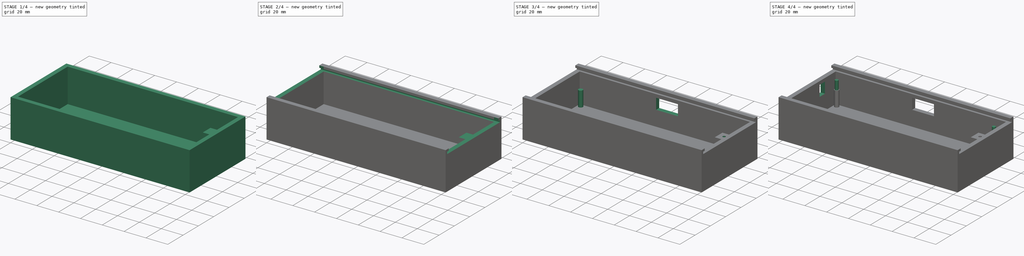
[diagram: build sequence overview — one tinted view per stage of 4, left to right]
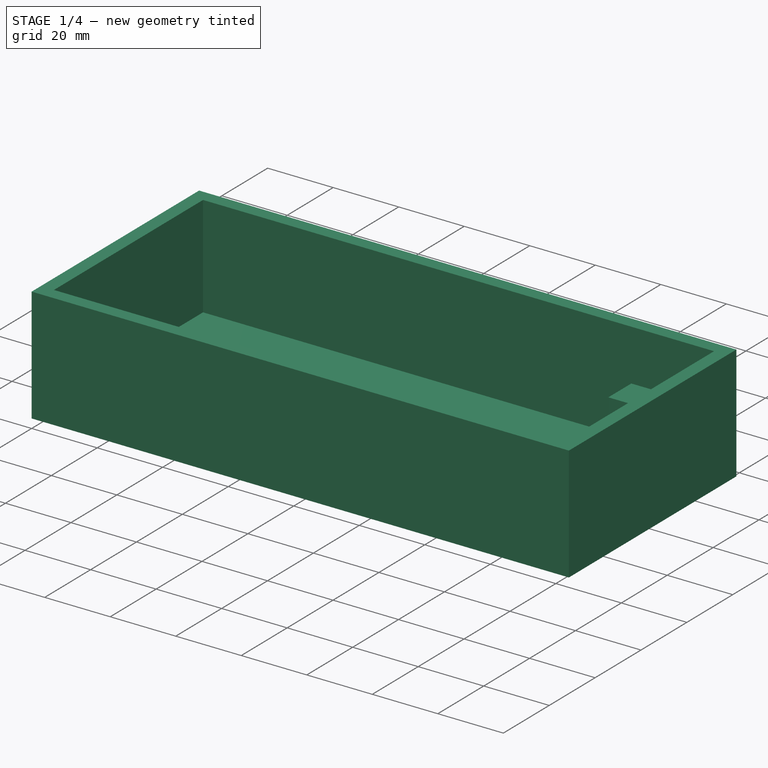
[diagram: stage 1 of 4 — iso view after this stage's code; geometry added in this stage tinted green]
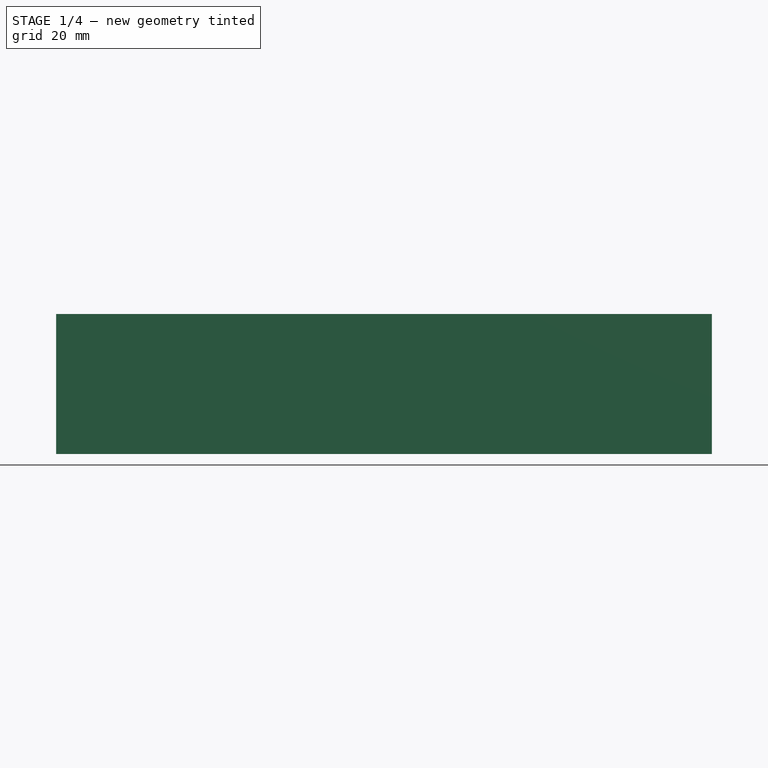
[diagram: stage 1 of 4 — front view after this stage's code; geometry added in this stage tinted green]
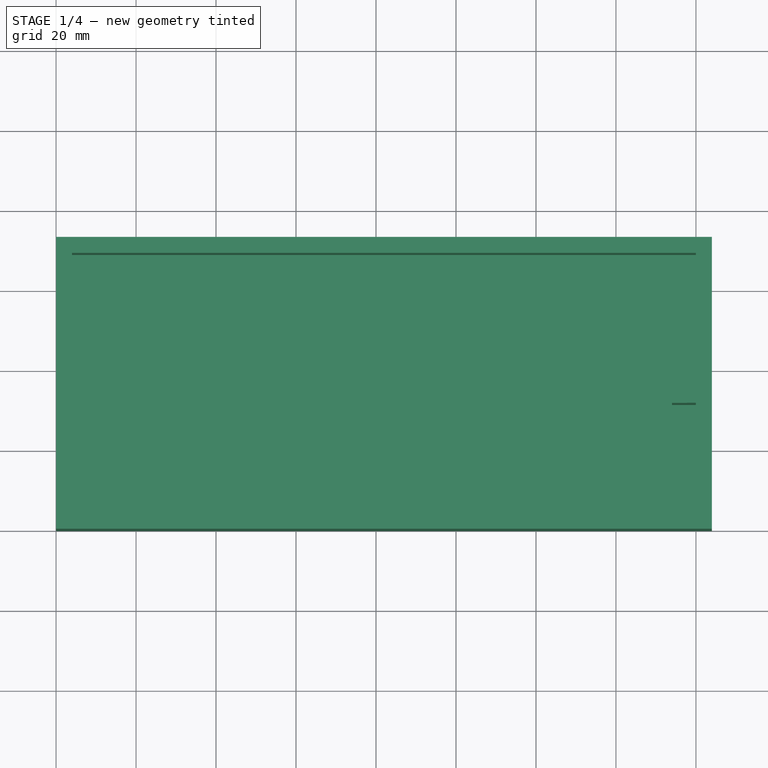
[diagram: stage 1 of 4 — top view after this stage's code; geometry added in this stage tinted green]
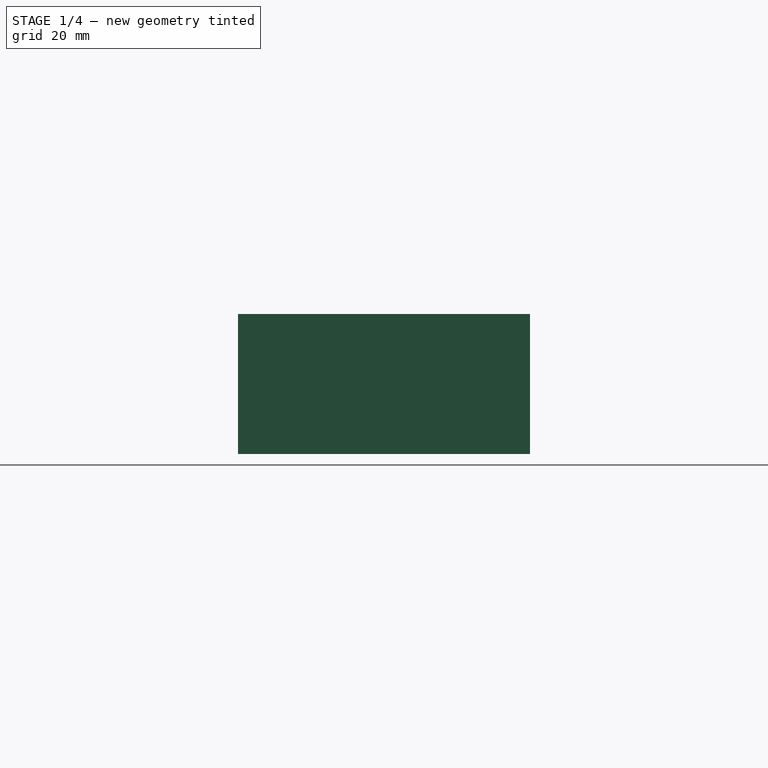
[diagram: stage 1 of 4 — right view after this stage's code; geometry added in this stage tinted green]
FCSTD DOCUMENT  (FreeCAD 0.20R29603 (Git))
Label: 3D_Case
License: All rights reserved
LicenseURL: http://en.wikipedia.org/wiki/All_rights_reserved
objects: Sketcher::SketchObject×9, PartDesign::Pocket×6, PartDesign::Pad×3, PartDesign::Body×1
note: 28 computed .brp shape members not serialized (recipe doc carries the construction recipe); baked Part::Feature solids carry a one-line shape summary decoded from their .brp

FEATURE [Sketcher::SketchObject] Sketch
  FullyConstrained = true
  MapMode = 5
  Support = -> [XY_Plane]
  sketch-geometry (4):
    g0: LineSegment StartX=0 StartY=0 StartZ=0 EndX=164 EndY=0 EndZ=0
    g1: LineSegment StartX=164 StartY=0 StartZ=0 EndX=164 EndY=73 EndZ=0
    g2: LineSegment StartX=164 StartY=73 StartZ=0 EndX=0 EndY=73 EndZ=0
    g3: LineSegment StartX=0 StartY=73 StartZ=0 EndX=0 EndY=0 EndZ=0
  constraints (12):
    c: Coincident(g0,g1)
    c: Coincident(g1,g2)
    c: Coincident(g2,g3)
    c: Coincident(g3,g0)
    c: Horizontal(g0)
    c: Horizontal(g2)
    c: Vertical(g1)
    c: Vertical(g3)
    c: DistanceX(g0) = 0
    c: DistanceY(g0) = 0
    c: DistanceX(g2,g2) = 164
    c: DistanceY(g3,g3) = 73
FEATURE [PartDesign::Pad] Pad
  Direction = (0,0,1)
  Length = 35
  Length2 = 10
  Profile = -> Sketch
  ReferenceAxis = -> Sketch [N_Axis]
  Type = 0
FEATURE [Sketcher::SketchObject] Sketch001
  FullyConstrained = false
  MapMode = 5
  Placement = pos=(0,0,35) rot=(0,0,1;0rad)
  Support = -> [Pad]
  sketch-geometry (8):
    g0: LineSegment StartX=4 StartY=69 StartZ=0 EndX=160 EndY=69 EndZ=0
    g1: LineSegment StartX=160 StartY=69 StartZ=0 EndX=160 EndY=41.5 EndZ=0
    g2: LineSegment StartX=160 StartY=41.5 StartZ=0 EndX=154 EndY=41.4712 EndZ=0
    g3: LineSegment StartX=154 StartY=41.4712 StartZ=0 EndX=154 EndY=31.4712 EndZ=0
    g4: LineSegment StartX=154 StartY=31.4712 StartZ=0 EndX=160 EndY=31.5 EndZ=0
    g5: LineSegment StartX=160 StartY=31.5 StartZ=0 EndX=160 EndY=4 EndZ=0
    g6: LineSegment StartX=160 StartY=4 StartZ=0 EndX=4 EndY=4 EndZ=0
    g7: LineSegment StartX=4 StartY=4 StartZ=0 EndX=4 EndY=69 EndZ=0
  constraints (23):
    c: Horizontal(g0)
    c: Coincident(g0,g1)
    c: Vertical(g1)
    c: Coincident(g1,g2)
    c: Coincident(g2,g3)
    c: Coincident(g3,g4)
    c: Coincident(g4,g5)
    c: Vertical(g5)
    c: Coincident(g5,g6)
    c: Horizontal(g6)
    c: Coincident(g6,g7)
    c: Coincident(g7,g0)
    c: Vertical(g7)
    c: DistanceX(g6) = 4
    c: DistanceY(g6) = 4
    c: DistanceX(g6,g6) = 156
    c: DistanceX(g0,g0) = 156
    c: DistanceX(g2,g2) = 6
    c: DistanceX(g4,g4) = 6
    c: DistanceY(g1,g1) = 27.5
    c: DistanceY(g5,g5) = 27.5
    c: DistanceY(g3,g3) = 10
    c: DistanceY(g7,g7) = 65
FEATURE [PartDesign::Pocket] Pocket
  BaseFeature = -> Pad
  Direction = (0,0,-1)
  Length = 31
  Length2 = 5
  Profile = -> Sketch001
  ReferenceAxis = -> Sketch001 [N_Axis]
  Type = 0
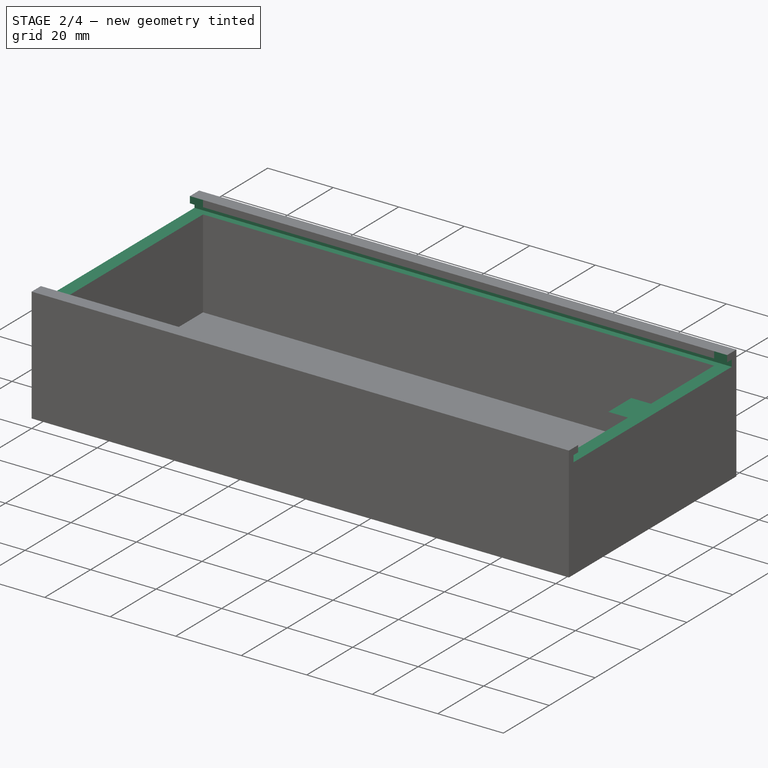
[diagram: stage 2 of 4 — iso view after this stage's code; geometry added in this stage tinted green]
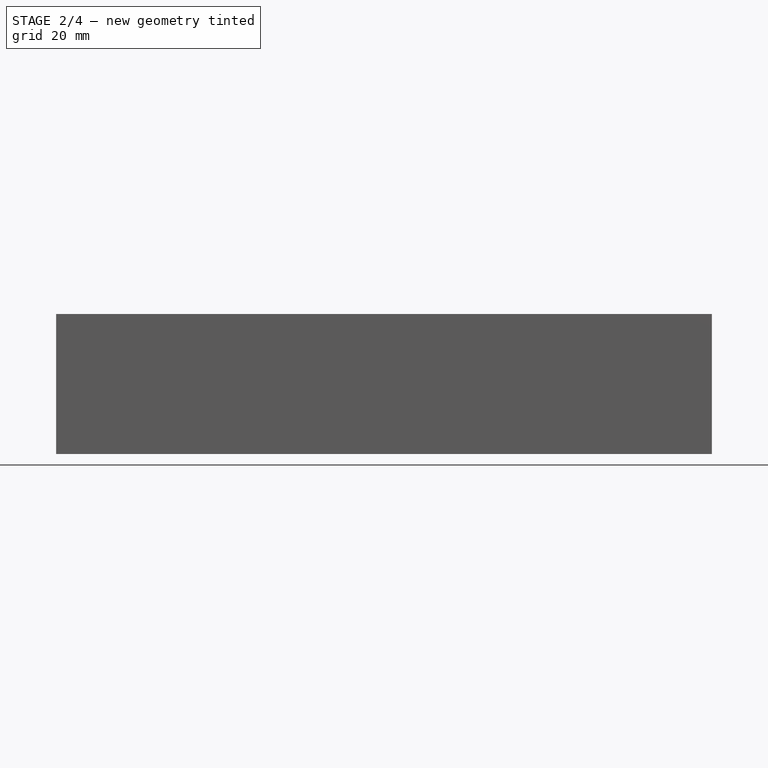
[diagram: stage 2 of 4 — front view after this stage's code; geometry added in this stage tinted green]
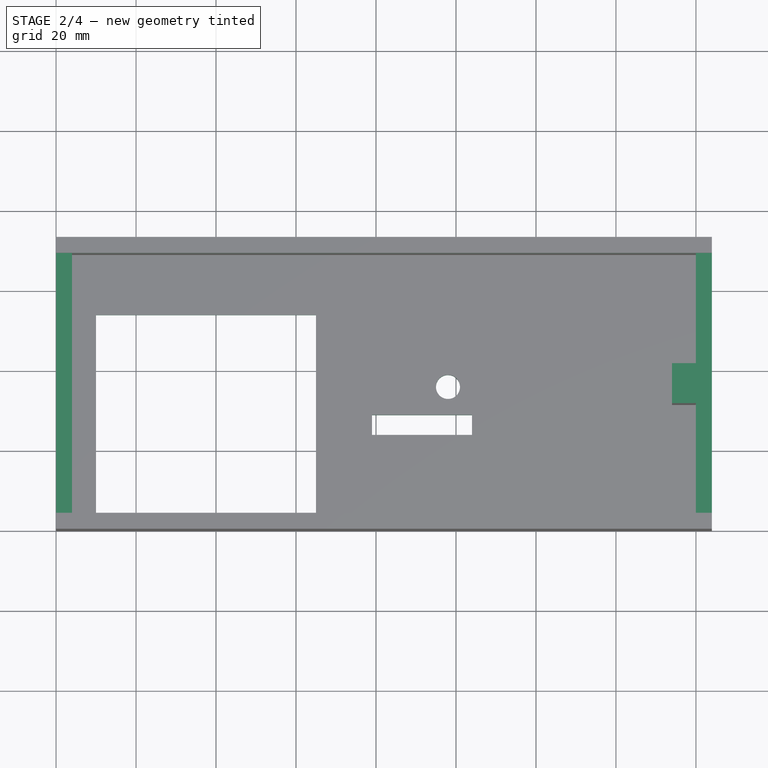
[diagram: stage 2 of 4 — top view after this stage's code; geometry added in this stage tinted green]
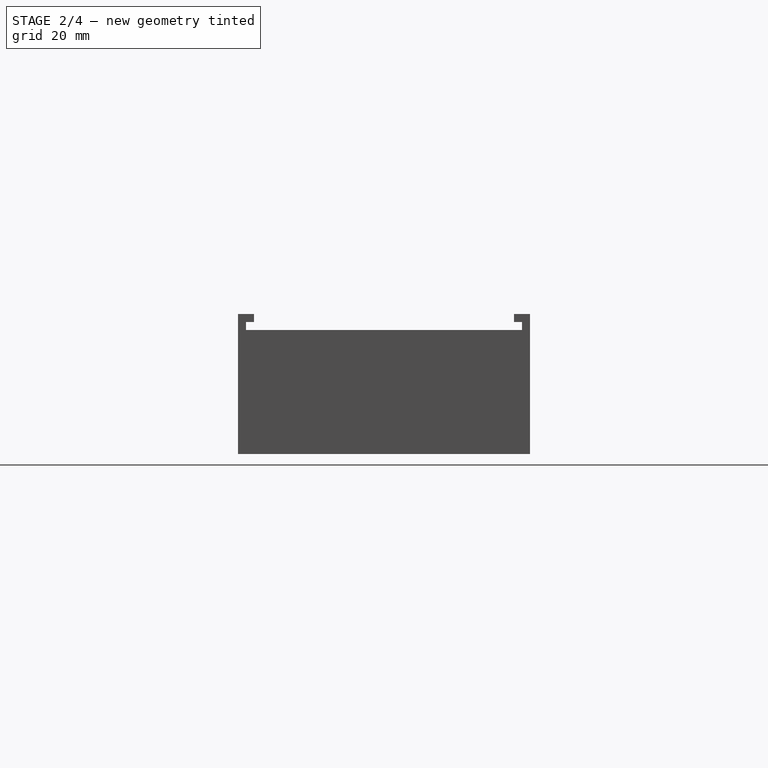
[diagram: stage 2 of 4 — right view after this stage's code; geometry added in this stage tinted green]
FEATURE [Sketcher::SketchObject] Sketch002
  FullyConstrained = true
  MapMode = 5
  Placement = pos=(0,0,0) rot=(0.57735,-0.57735,-0.57735;2.0944rad)
  Support = -> [Pocket]
  sketch-geometry (8):
    g0: LineSegment StartX=-69 StartY=35 StartZ=0 EndX=-69 EndY=33 EndZ=0
    g1: LineSegment StartX=-69 StartY=33 StartZ=0 EndX=-71 EndY=33 EndZ=0
    g2: LineSegment StartX=-71 StartY=33 StartZ=0 EndX=-71 EndY=31 EndZ=0
    g3: LineSegment StartX=-71 StartY=31 StartZ=0 EndX=-2 EndY=31 EndZ=0
    g4: LineSegment StartX=-2 StartY=31 StartZ=0 EndX=-2 EndY=33 EndZ=0
    g5: LineSegment StartX=-2 StartY=33 StartZ=0 EndX=-4 EndY=33 EndZ=0
    g6: LineSegment StartX=-4 StartY=33 StartZ=0 EndX=-4 EndY=35 EndZ=0
    g7: LineSegment StartX=-4 StartY=35 StartZ=0 EndX=-69 EndY=35 EndZ=0
  constraints (24):
    c: Vertical(g0)
    c: Coincident(g0,g1)
    c: Horizontal(g1)
    c: Coincident(g1,g2)
    c: Vertical(g2)
    c: Coincident(g2,g3)
    c: Horizontal(g3)
    c: Coincident(g3,g4)
    c: Vertical(g4)
    c: Coincident(g4,g5)
    c: Horizontal(g5)
    c: Coincident(g5,g6)
    c: Vertical(g6)
    c: Coincident(g6,g7)
    c: Coincident(g7,g0)
    c: Horizontal(g7)
    c: DistanceY(g0,g0) = 2
    c: DistanceY(g2,g2) = 2
    c: DistanceY(g6,g6) = 2
    c: DistanceX(g5,g5) = 2
    c: DistanceX(g1,g1) = 2
    c: DistanceX(g7,g7) = 65
    c: DistanceX(g3) = -2
    c: DistanceY(g3) = 31
FEATURE [PartDesign::Pocket] Pocket001
  BaseFeature = -> Pocket
  Direction = (1,0,0)
  Length = 200
  Length2 = 5
  Profile = -> Sketch002
  ReferenceAxis = -> Sketch002 [N_Axis]
  Type = 0
FEATURE [Sketcher::SketchObject] Sketch003
  FullyConstrained = true
  MapMode = 5
  Placement = pos=(0,0,4) rot=(0,0,1;0rad)
  Support = -> [Pocket001]
  sketch-geometry (9):
    g0: LineSegment StartX=10 StartY=4 StartZ=0 EndX=65 EndY=4 EndZ=0
    g1: LineSegment StartX=65 StartY=4 StartZ=0 EndX=65 EndY=54 EndZ=0
    g2: LineSegment StartX=65 StartY=54 StartZ=0 EndX=10 EndY=54 EndZ=0
    g3: LineSegment StartX=10 StartY=54 StartZ=0 EndX=10 EndY=4 EndZ=0
    g4: Circle CenterX=98 CenterY=36 CenterZ=0 NormalX=0 NormalY=0 NormalZ=1 AngleXU=0 Radius=3
    g5: LineSegment StartX=79 StartY=29 StartZ=0 EndX=104 EndY=29 EndZ=0
    g6: LineSegment StartX=104 StartY=29 StartZ=0 EndX=104 EndY=24 EndZ=0
    g7: LineSegment StartX=104 StartY=24 StartZ=0 EndX=79 EndY=24 EndZ=0
    g8: LineSegment StartX=79 StartY=24 StartZ=0 EndX=79 EndY=29 EndZ=0
  constraints (27):
    c: Coincident(g0,g1)
    c: Coincident(g1,g2)
    c: Coincident(g2,g3)
    c: Coincident(g3,g0)
    c: Horizontal(g0)
    c: Horizontal(g2)
    c: Vertical(g1)
    c: Vertical(g3)
    c: Coincident(g5,g6)
    c: Coincident(g6,g7)
    c: Coincident(g7,g8)
    c: Coincident(g8,g5)
    c: Horizontal(g5)
    c: Horizontal(g7)
    c: Vertical(g6)
    c: Vertical(g8)
    c: DistanceY(g6,g6) = 5
    c: DistanceX(g7,g7) = 25
    c: Diameter(g4) = 6
    c: DistanceX(g2,g2) = 55
    c: DistanceY(g1,g1) = 50
    c: DistanceX(g0) = 10
    c: DistanceY(g0) = 4
    c: DistanceX(g4) = 98
    c: DistanceY(g4) = 36
    c: DistanceX(g7) = 79
    c: DistanceY(g7) = 24
FEATURE [PartDesign::Pocket] Pocket002
  BaseFeature = -> Pocket001
  Direction = (0,0,-1)
  Length = 5
  Length2 = 5
  Profile = -> Sketch003
  ReferenceAxis = -> Sketch003 [N_Axis]
  Type = 0
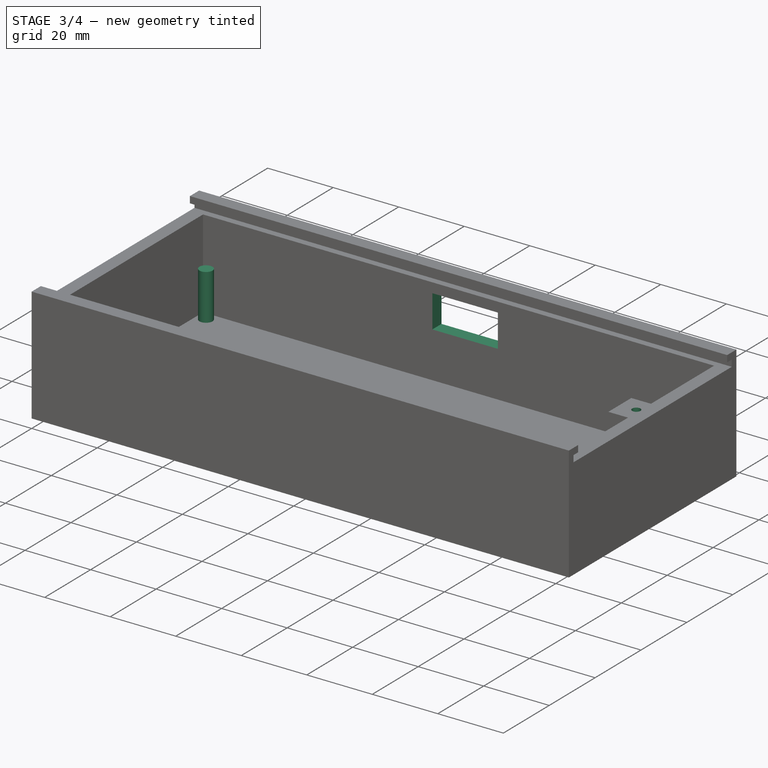
[diagram: stage 3 of 4 — iso view after this stage's code; geometry added in this stage tinted green]
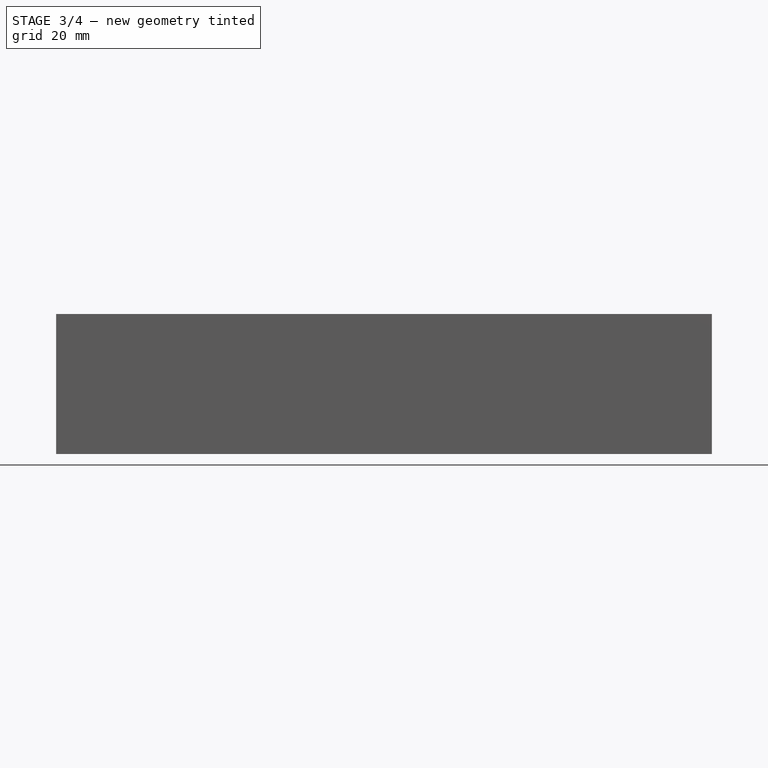
[diagram: stage 3 of 4 — front view after this stage's code; geometry added in this stage tinted green]
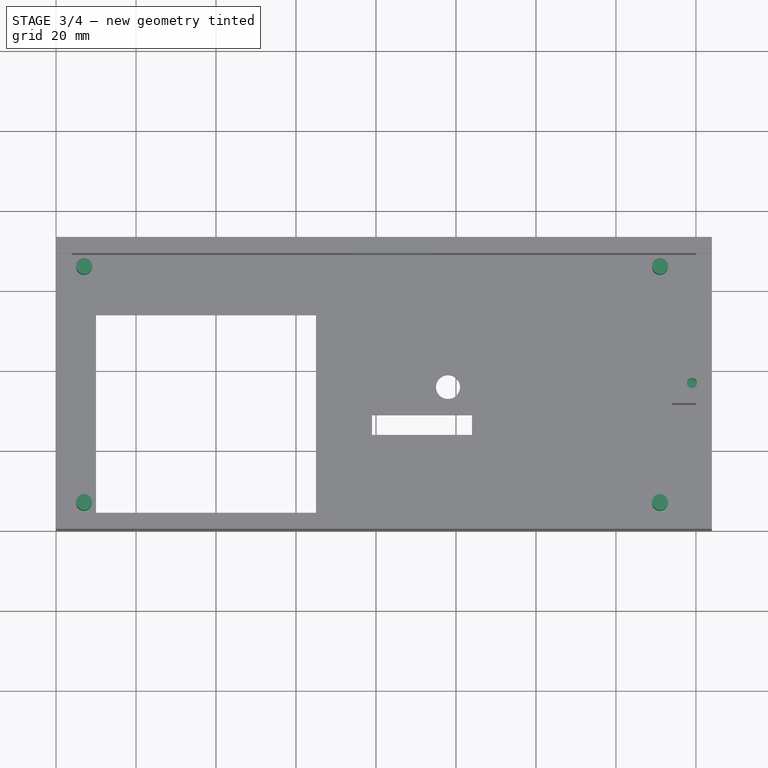
[diagram: stage 3 of 4 — top view after this stage's code; geometry added in this stage tinted green]
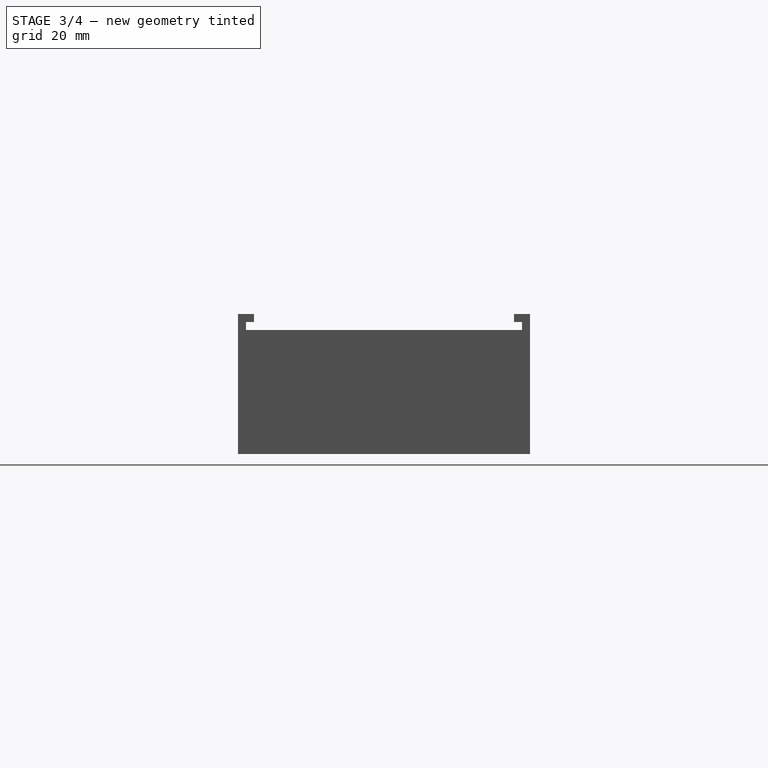
[diagram: stage 3 of 4 — right view after this stage's code; geometry added in this stage tinted green]
FEATURE [Sketcher::SketchObject] Sketch004
  FullyConstrained = true
  MapMode = 5
  Placement = pos=(0,0,4) rot=(0,0,1;0rad)
  Support = -> [Pocket002]
  sketch-geometry (4):
    g0: Circle CenterX=7 CenterY=66 CenterZ=0 NormalX=0 NormalY=0 NormalZ=1 AngleXU=0 Radius=2
    g1: Circle CenterX=7 CenterY=7 CenterZ=0 NormalX=0 NormalY=0 NormalZ=1 AngleXU=0 Radius=2
    g2: Circle CenterX=151 CenterY=66 CenterZ=0 NormalX=0 NormalY=0 NormalZ=1 AngleXU=0 Radius=2
    g3: Circle CenterX=151 CenterY=7 CenterZ=0 NormalX=0 NormalY=0 NormalZ=1 AngleXU=0 Radius=2
  constraints (12):
    c: Diameter(g0) = 4
    c: Diameter(g1) = 4
    c: Diameter(g3) = 4
    c: Diameter(g2) = 4
    c: DistanceX(g0) = 7
    c: DistanceY(g0) = 66
    c: DistanceX(g1) = 7
    c: DistanceY(g1) = 7
    c: DistanceX(g3) = 151
    c: DistanceY(g3) = 7
    c: DistanceX(g2) = 151
    c: DistanceY(g2) = 66
FEATURE [PartDesign::Pad] Pad001
  BaseFeature = -> Pocket002
  Direction = (0,0,1)
  Length = 14
  Length2 = 10
  Profile = -> Sketch004
  ReferenceAxis = -> Sketch004 [N_Axis]
  Type = 0
FEATURE [Sketcher::SketchObject] Sketch005
  FullyConstrained = true
  MapMode = 5
  Placement = pos=(0,0,31) rot=(0,0,1;0rad)
  Support = -> [Pad001]
  sketch-geometry (1):
    g0: Circle CenterX=159 CenterY=36.5 CenterZ=0 NormalX=0 NormalY=0 NormalZ=1 AngleXU=0 Radius=1.25
  constraints (3):
    c: Diameter(g0) = 2.5
    c: DistanceX(g0) = 159
    c: DistanceY(g0) = 36.5
FEATURE [PartDesign::Pocket] Pocket003
  BaseFeature = -> Pad001
  Direction = (0,0,-1)
  Length = 10
  Length2 = 5
  Profile = -> Sketch005
  ReferenceAxis = -> Sketch005 [N_Axis]
  Type = 0
FEATURE [Sketcher::SketchObject] Sketch006
  FullyConstrained = true
  MapMode = 5
  Placement = pos=(0,69,0) rot=(1,0,0;1.5708rad)
  Support = -> [Pocket003]
  sketch-geometry (4):
    g0: LineSegment StartX=74 StartY=28 StartZ=0 EndX=94 EndY=28 EndZ=0
    g1: LineSegment StartX=94 StartY=28 StartZ=0 EndX=94 EndY=18 EndZ=0
    g2: LineSegment StartX=94 StartY=18 StartZ=0 EndX=74 EndY=18 EndZ=0
    g3: LineSegment StartX=74 StartY=18 StartZ=0 EndX=74 EndY=28 EndZ=0
  constraints (12):
    c: Coincident(g0,g1)
    c: Coincident(g1,g2)
    c: Coincident(g2,g3)
    c: Coincident(g3,g0)
    c: Horizontal(g0)
    c: Horizontal(g2)
    c: Vertical(g1)
    c: Vertical(g3)
    c: DistanceX(g0,g0) = 20
    c: DistanceY(g1,g1) = 10
    c: DistanceX(g2) = 74
    c: DistanceY(g2) = 18
FEATURE [PartDesign::Pocket] Pocket004
  BaseFeature = -> Pocket003
  Direction = (0,1,-2e-16)
  Length = 5
  Length2 = 5
  Profile = -> Sketch006
  ReferenceAxis = -> Sketch006 [N_Axis]
  Type = 0
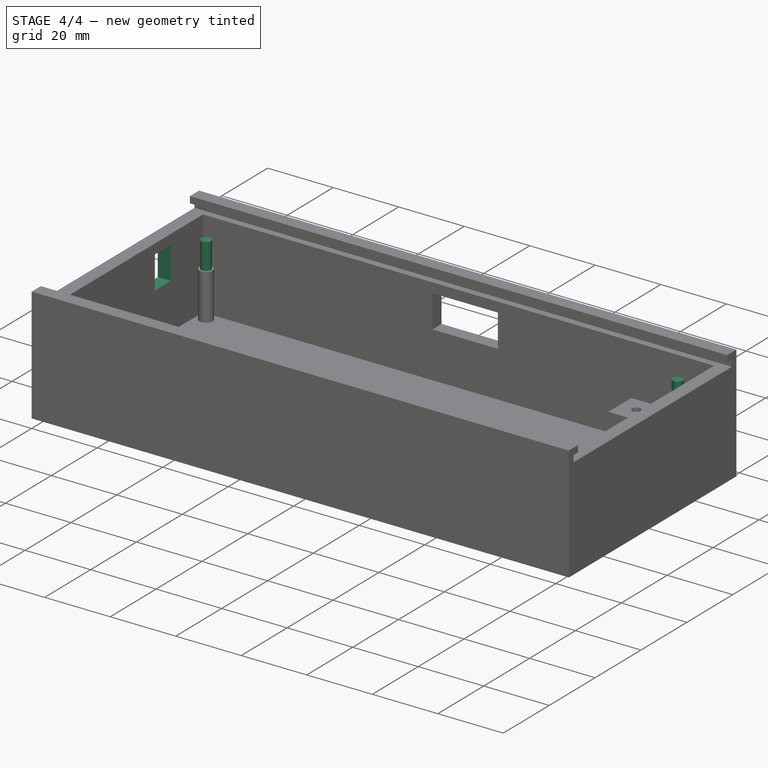
[diagram: stage 4 of 4 — iso view after this stage's code; geometry added in this stage tinted green]
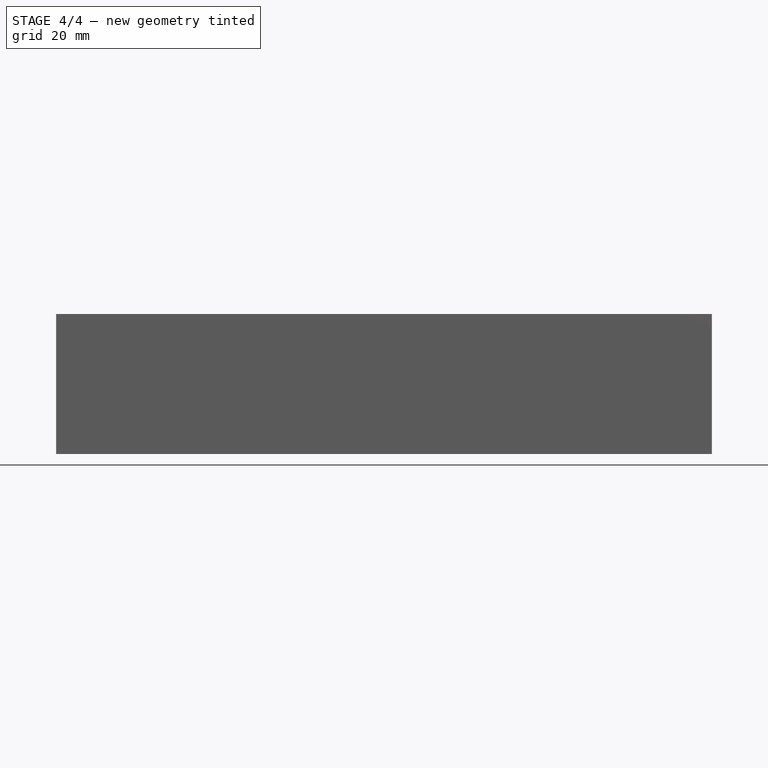
[diagram: stage 4 of 4 — front view after this stage's code; geometry added in this stage tinted green]
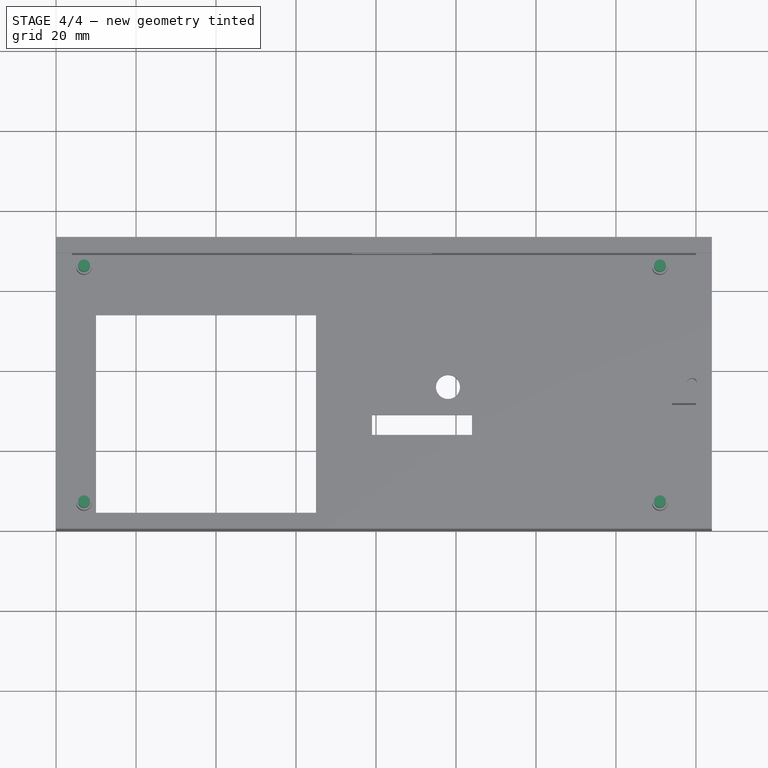
[diagram: stage 4 of 4 — top view after this stage's code; geometry added in this stage tinted green]
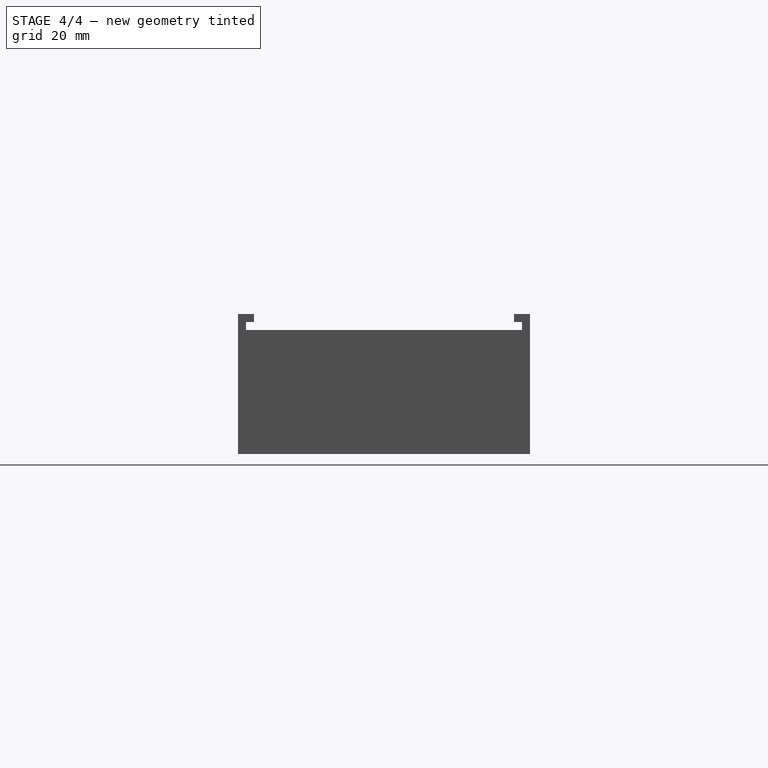
[diagram: stage 4 of 4 — right view after this stage's code; geometry added in this stage tinted green]
FEATURE [Sketcher::SketchObject] Sketch007
  FullyConstrained = true
  MapMode = 5
  Placement = pos=(0,0,0) rot=(0.57735,-0.57735,-0.57735;2.0944rad)
  Support = -> [Pocket004]
  sketch-geometry (4):
    g0: LineSegment StartX=-55 StartY=28 StartZ=0 EndX=-48 EndY=28 EndZ=0
    g1: LineSegment StartX=-48 StartY=28 StartZ=0 EndX=-48 EndY=18 EndZ=0
    g2: LineSegment StartX=-48 StartY=18 StartZ=0 EndX=-55 EndY=18 EndZ=0
    g3: LineSegment StartX=-55 StartY=18 StartZ=0 EndX=-55 EndY=28 EndZ=0
  constraints (12):
    c: Coincident(g0,g1)
    c: Coincident(g1,g2)
    c: Coincident(g2,g3)
    c: Coincident(g3,g0)
    c: Horizontal(g0)
    c: Horizontal(g2)
    c: Vertical(g1)
    c: Vertical(g3)
    c: DistanceX(g0,g0) = 7
    c: DistanceY(g1,g1) = 10
    c: DistanceX(g2) = -55
    c: DistanceY(g2) = 18
FEATURE [PartDesign::Pocket] Pocket005
  BaseFeature = -> Pocket004
  Direction = (1,0,0)
  Length = 5
  Length2 = 5
  Profile = -> Sketch007
  ReferenceAxis = -> Sketch007 [N_Axis]
  Type = 0
FEATURE [Sketcher::SketchObject] Sketch008
  FullyConstrained = true
  MapMode = 5
  Placement = pos=(0,0,18) rot=(0,0,1;0rad)
  Support = -> [Pocket005]
  sketch-geometry (4):
    g0: Circle CenterX=7 CenterY=66 CenterZ=0 NormalX=0 NormalY=0 NormalZ=1 AngleXU=0 Radius=1.5
    g1: Circle CenterX=7 CenterY=7 CenterZ=0 NormalX=0 NormalY=0 NormalZ=1 AngleXU=0 Radius=1.5
    g2: Circle CenterX=151 CenterY=7 CenterZ=0 NormalX=0 NormalY=0 NormalZ=1 AngleXU=0 Radius=1.5
    g3: Circle CenterX=151 CenterY=66 CenterZ=0 NormalX=0 NormalY=0 NormalZ=1 AngleXU=0 Radius=1.5
  constraints (12):
    c: Diameter(g0) = 3
    c: DistanceX(g0) = 7
    c: DistanceY(g0) = 66
    c: Diameter(g1) = 3
    c: DistanceX(g1) = 7
    c: DistanceY(g1) = 7
    c: Diameter(g3) = 3
    c: Diameter(g2) = 3
    c: DistanceX(g2) = 151
    c: DistanceY(g2) = 7
    c: DistanceX(g3) = 151
    c: DistanceY(g3) = 66
FEATURE [PartDesign::Pad] Pad002
  BaseFeature = -> Pocket005
  Direction = (0,0,1)
  Length = 8
  Length2 = 10
  Profile = -> Sketch008
  ReferenceAxis = -> Sketch008 [N_Axis]
  Type = 0
FEATURE [PartDesign::Body] Body
  Group = -> [Sketch,Pad,Sketch001,Pocket,Sketch002,Pocket001,Sketch003,Pocket002,Sketch004,Pad001,Sketch005,Pocket003,Sketch006,Pocket004,Sketch007,Pocket005,Sketch008,Pad002]
  Origin = -> Origin
  Tip = -> Pad002
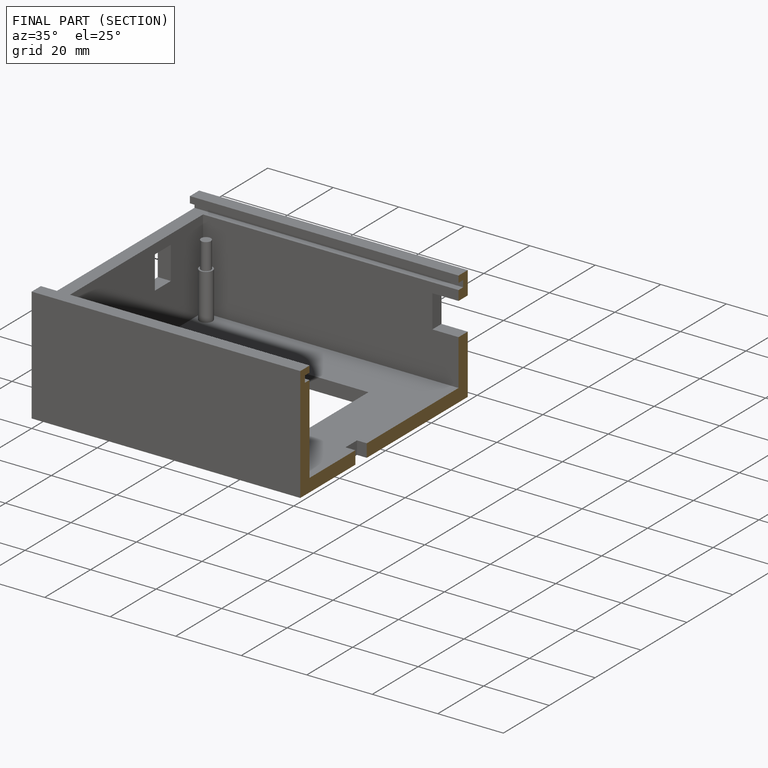
[diagram: finished part — half-section view (interior)]
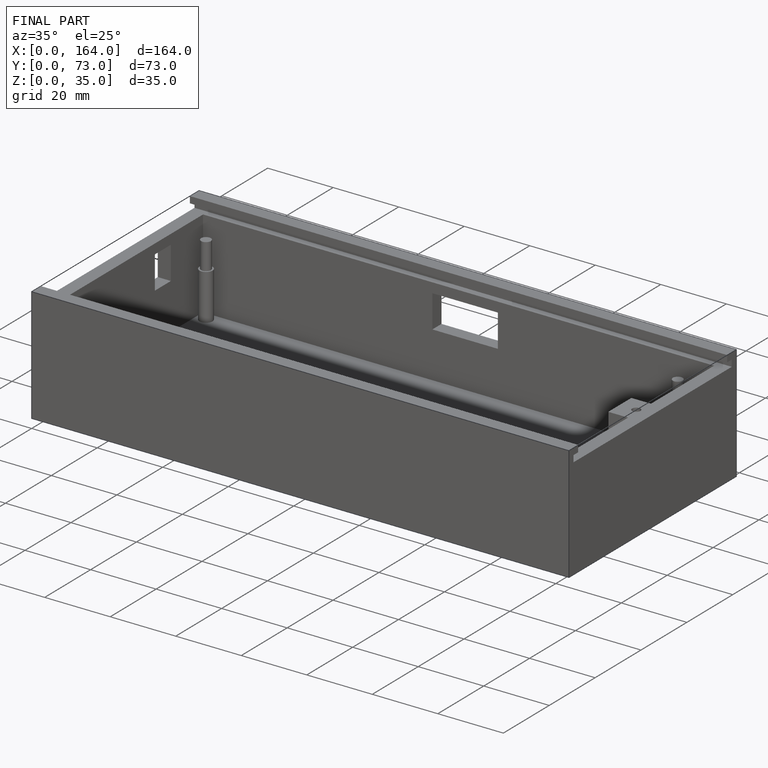
[diagram: finished part — iso view with bounding-box wireframe]
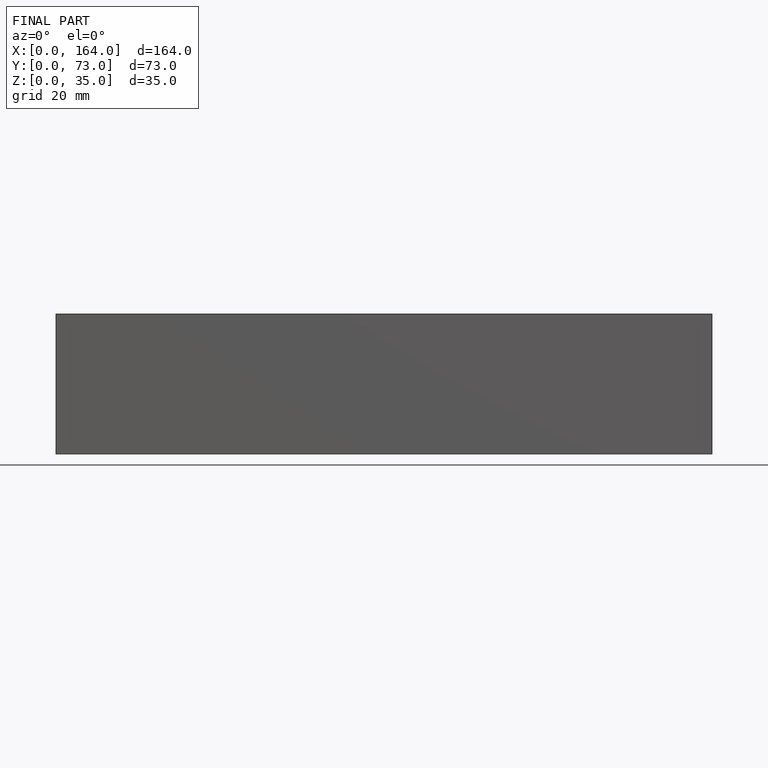
[diagram: finished part — front view with bounding-box wireframe]
